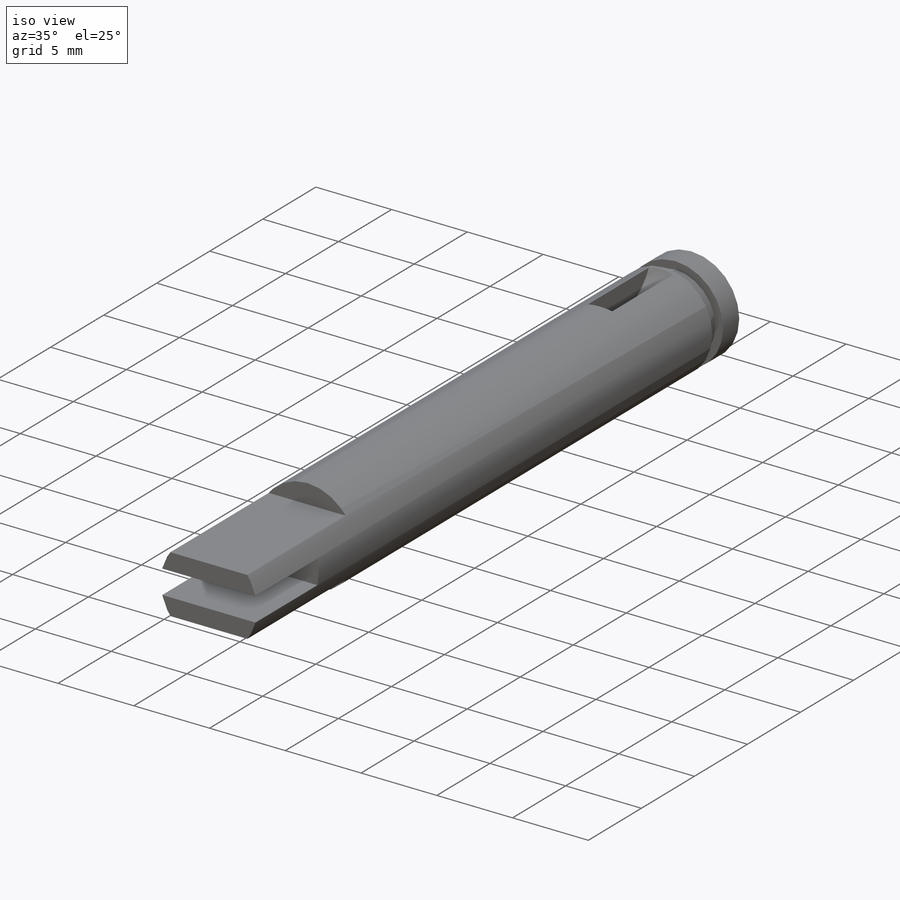
[diagram: iso view]
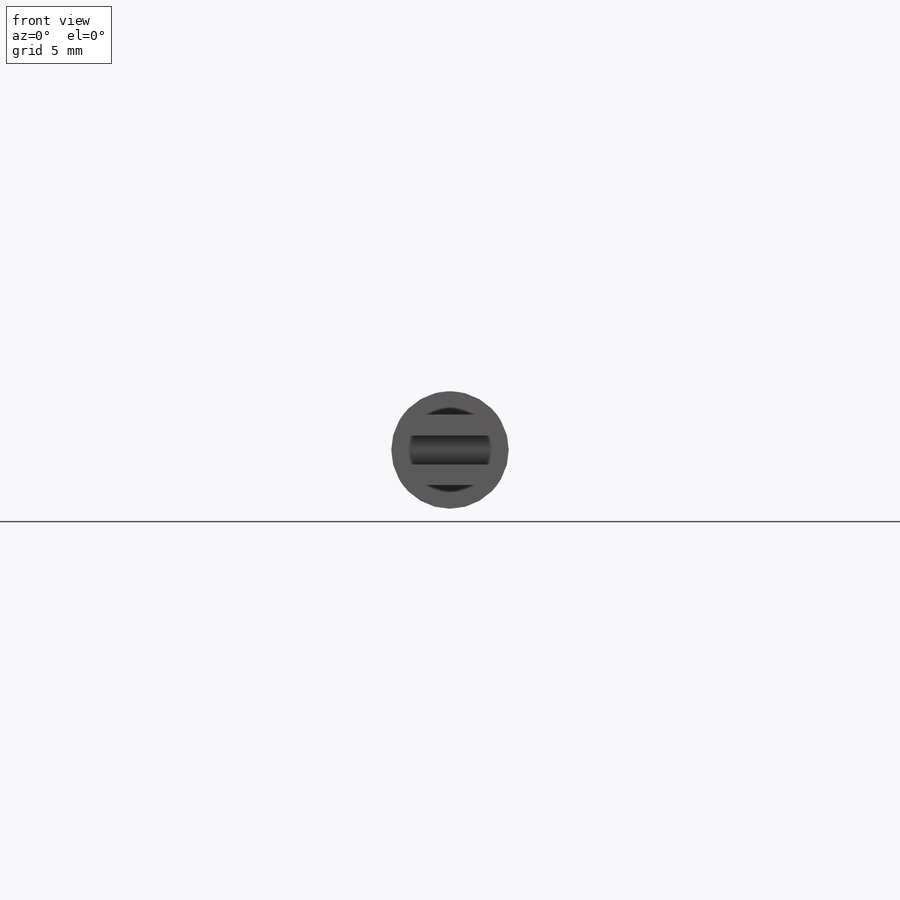
[diagram: front view]
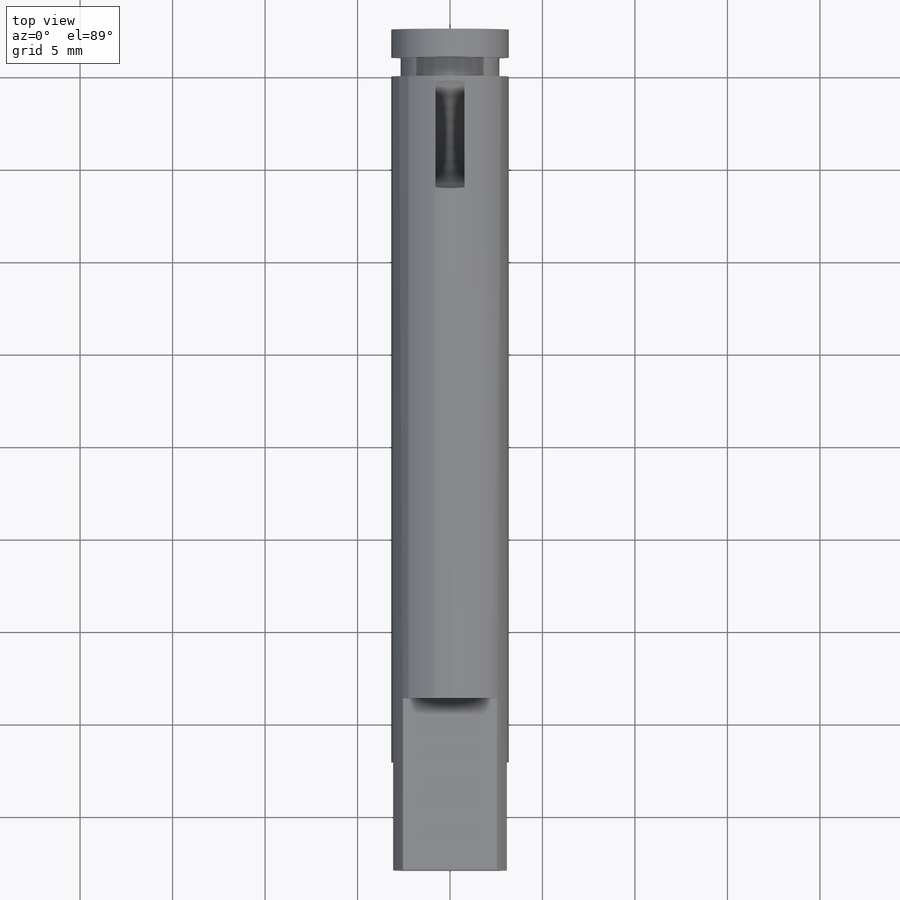
[diagram: top view]
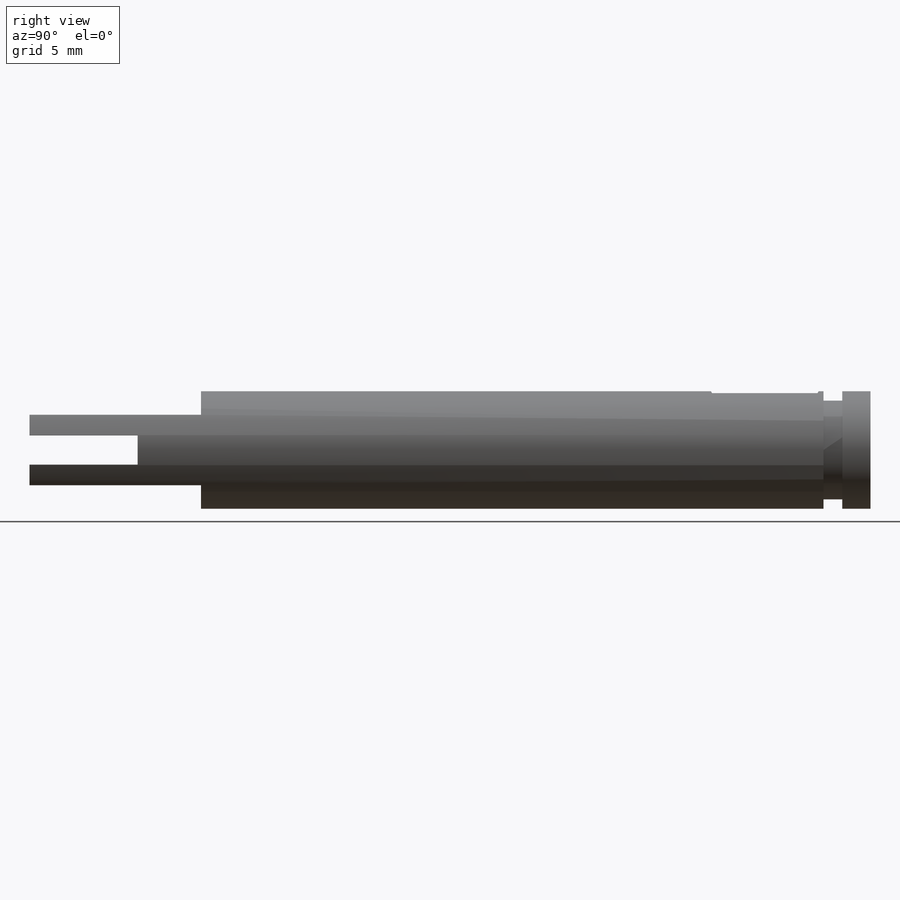
[diagram: right view]
SOLIDWORKS PART (.sldprt)
format: sldprt  version: not decoded by parser v0  size: 251,392 bytes
history: native  units: mm
features: sketch x10, cut_extrude x4, extrude x2, material x1, plane x1, chamfer x1, mirror x1 (+12 scaffold rows collapsed)
feature tree (32):
  scaffold x12  (default folders/planes/origin — collapsed)
  material  "Material <not specified>"
  sketch  "Sketch1"  dims[D1=~9.38536mm]
  extrude  "Extrude1"  Depth=42.926mm
  sketch  "Sketch2"
  sketch  "Sketch3"
  plane  "Plane1"
  sketch  "Sketch4"  dims[D1=1.27mm]
  cut_extrude  "Extrude2"  Depth=0.79375mm
  sketch  "Sketch5"
  extrude  "Extrude3"  Depth=2.54mm
  sketch  "Sketch6"  dims[D1=2.6289mm]
  cut_extrude  "Extrude4"  Depth=1.016mm
  chamfer  "Chamfer1"  Distance=2.032mm Angle=60deg
  sketch  "Sketch7"  dims[D1=7.366mm]
  cut_extrude  "Extrude5"  [1 undecoded]
  sketch  "Sketch8"  dims[D1=1.27mm]
  cut_extrude  "Extrude6"  [1 undecoded]
  sketch  "Sketch9"
  mirror  "Mirror1"
  sketch  "Sketch10"
decode coverage: 10 of 18 modeling features carry decoded parameters
note: ~ marks probable driven/reference dimensions
note: 2 parameter values undecoded
note: suppression state not decoded; provenance and decode notes live in map.json
